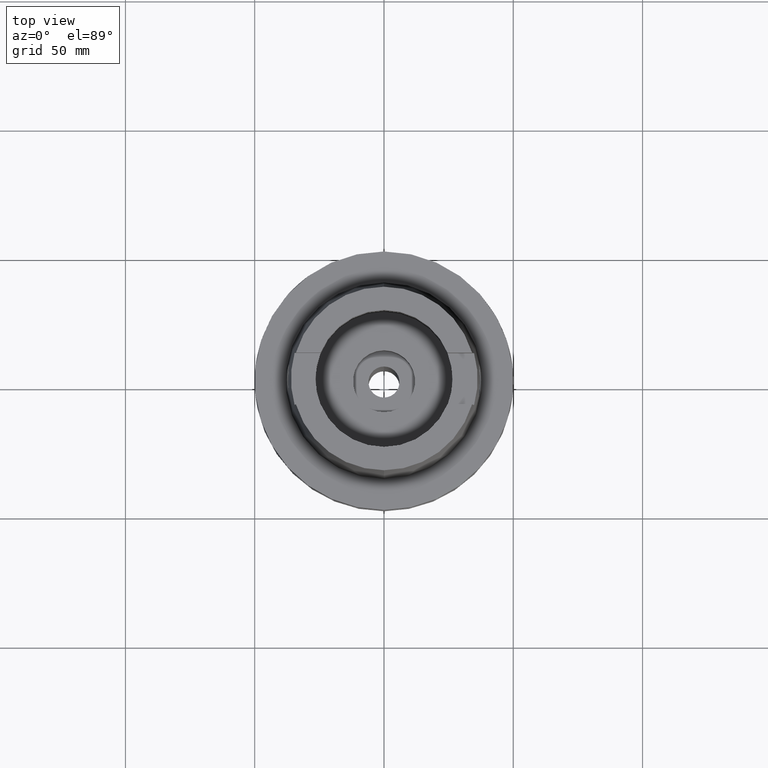
[diagram: clean part render]
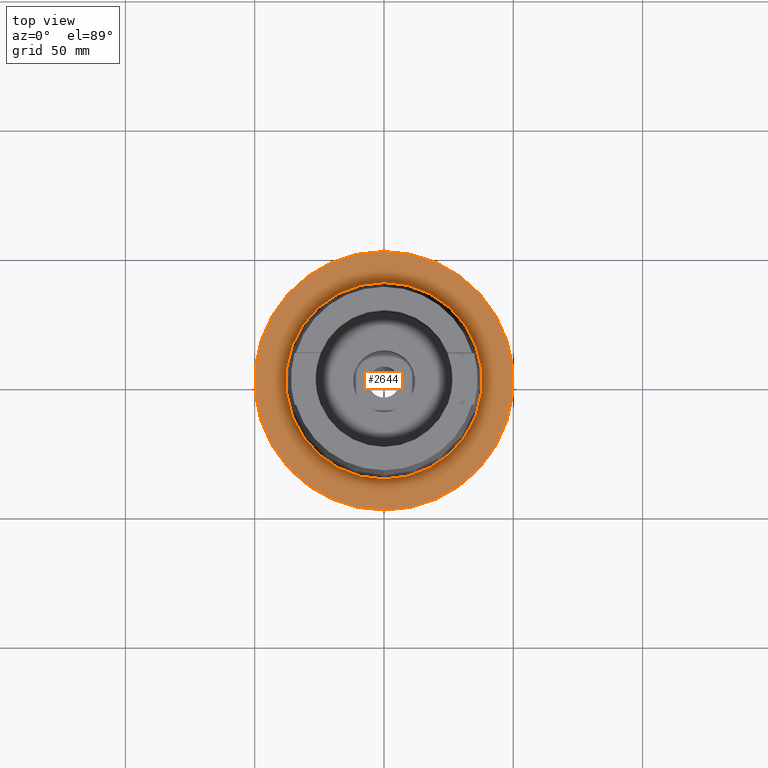
[diagram: same view with one face highlighted and labeled with its STEP entity id]
A machine part, top view. The second image highlights one B-rep face of the part: STEP entity #2644.
In plain terms, the highlighted planar face has unit normal (0, 0, 1).
Its self-contained STEP definition (entity closure, byte-faithful):
#342=CARTESIAN_POINT('',(0.E0,0.E0,0.E0));
#343=DIRECTION('',(0.E0,0.E0,-1.E0));
#344=DIRECTION('',(0.E0,-1.E0,0.E0));
#345=AXIS2_PLACEMENT_3D('',#342,#343,#344);
#350=CARTESIAN_POINT('',(0.E0,0.E0,0.E0));
#351=DIRECTION('',(0.E0,0.E0,-1.E0));
#352=DIRECTION('',(0.E0,1.E0,0.E0));
#353=AXIS2_PLACEMENT_3D('',#350,#351,#352);
#358=CARTESIAN_POINT('',(0.E0,0.E0,1.136868377216E-13));
#359=DIRECTION('',(0.E0,0.E0,1.E0));
#360=DIRECTION('',(0.E0,-1.E0,0.E0));
#361=AXIS2_PLACEMENT_3D('',#358,#359,#360);
#366=CARTESIAN_POINT('',(0.E0,0.E0,1.136868377216E-13));
#367=DIRECTION('',(0.E0,0.E0,1.E0));
#368=DIRECTION('',(0.E0,1.E0,0.E0));
#369=AXIS2_PLACEMENT_3D('',#366,#367,#368);
#2152=CARTESIAN_POINT('',(0.E0,3.800001658252E1,2.273736754432E-13));
#2153=VERTEX_POINT('',#2152);
#2154=CARTESIAN_POINT('',(0.E0,-3.800001658252E1,1.136868377216E-13));
#2155=VERTEX_POINT('',#2154);
#2162=CARTESIAN_POINT('',(0.E0,-5.E1,0.E0));
#2163=CARTESIAN_POINT('',(0.E0,5.E1,0.E0));
#2164=VERTEX_POINT('',#2162);
#2165=VERTEX_POINT('',#2163);
#2629=CARTESIAN_POINT('',(0.E0,0.E0,0.E0));
#2630=DIRECTION('',(0.E0,0.E0,1.E0));
#2631=DIRECTION('',(0.E0,1.E0,0.E0));
#2632=AXIS2_PLACEMENT_3D('',#2629,#2630,#2631);
#2633=PLANE('',#2632);
#2635=ORIENTED_EDGE('',*,*,#2634,.T.);
#2637=ORIENTED_EDGE('',*,*,#2636,.T.);
#2638=EDGE_LOOP('',(#2635,#2637));
#2639=FACE_OUTER_BOUND('',#2638,.F.);
#2640=ORIENTED_EDGE('',*,*,#2535,.T.);
#2641=ORIENTED_EDGE('',*,*,#2604,.T.);
#2642=EDGE_LOOP('',(#2640,#2641));
#2643=FACE_BOUND('',#2642,.F.);
#346=CIRCLE('',#345,5.E1);
#354=CIRCLE('',#353,5.E1);
#362=CIRCLE('',#361,3.800001658252E1);
#370=CIRCLE('',#369,3.800001658252E1);
#2535=EDGE_CURVE('',#2155,#2153,#362,.T.);
#2604=EDGE_CURVE('',#2153,#2155,#370,.T.);
#2634=EDGE_CURVE('',#2164,#2165,#346,.T.);
#2636=EDGE_CURVE('',#2165,#2164,#354,.T.);
#2644=ADVANCED_FACE('',(#2639,#2643),#2633,.T.);